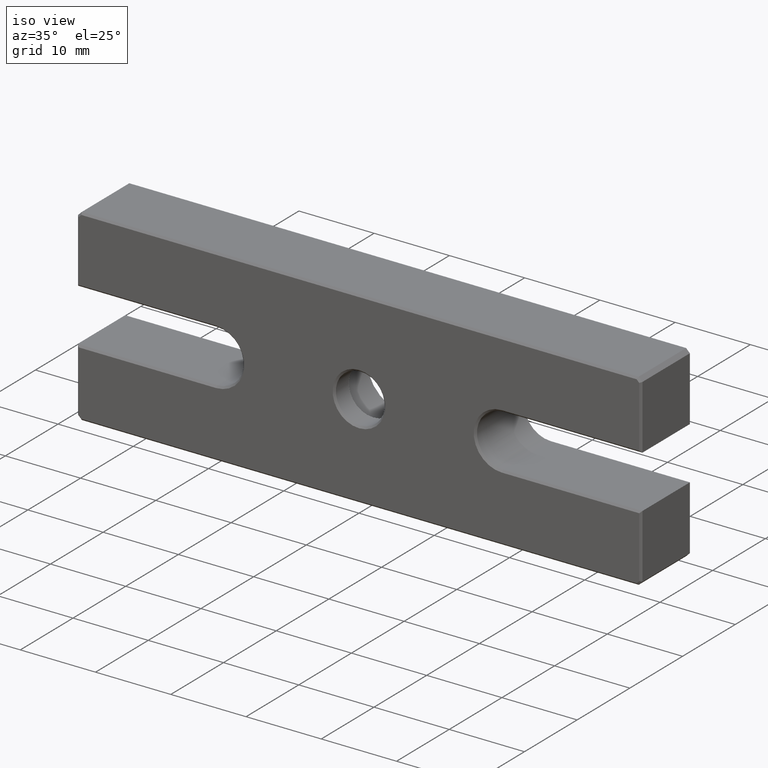
[diagram: clean part render]
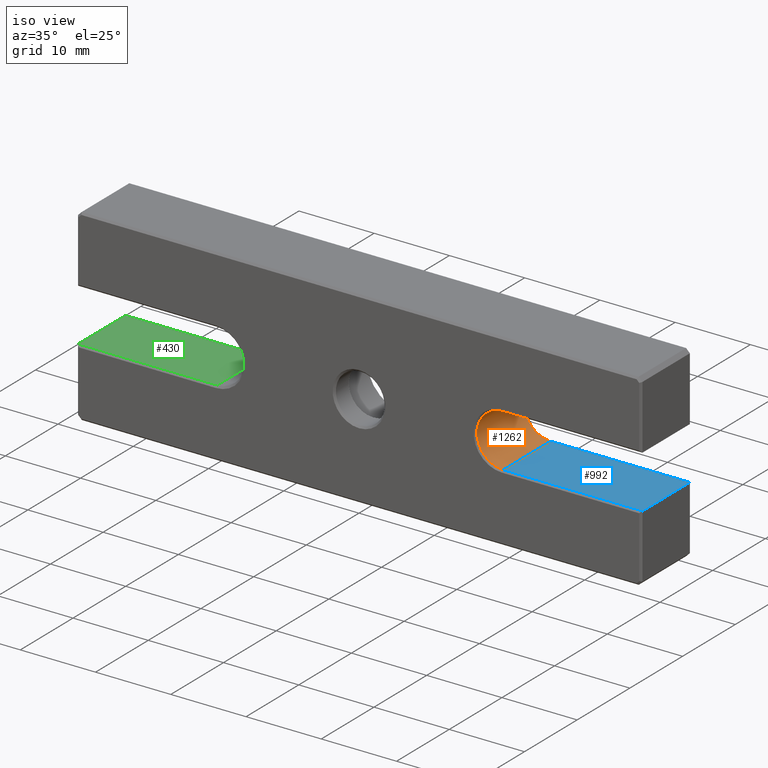
[diagram: same view with three faces highlighted in distinct colors, each labeled with its STEP entity id]
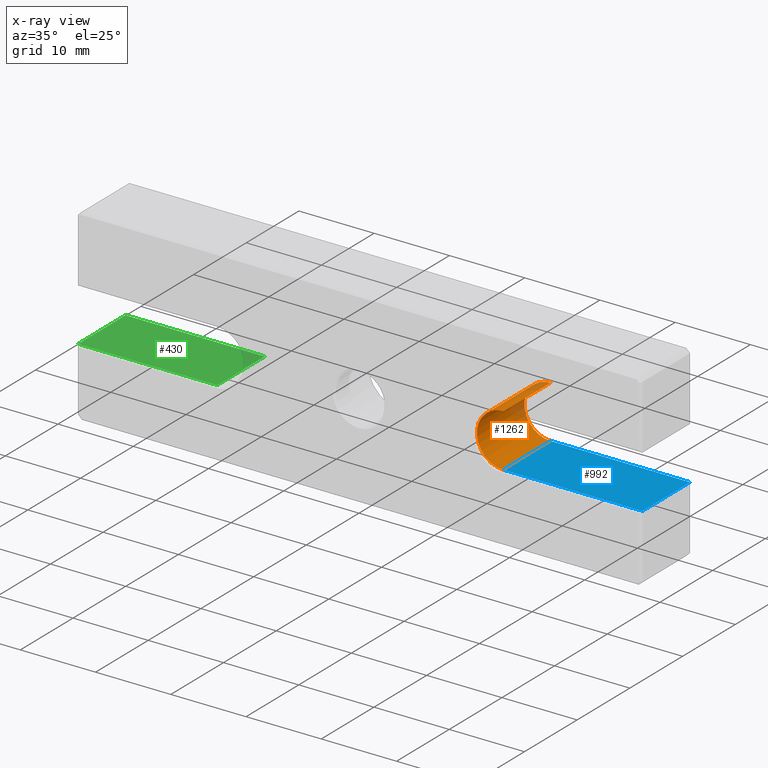
[diagram: x-ray of the same camera — body ghosted, the three highlighted faces saturated]
A machine part, iso view with three faces highlighted in distinct colors.
The next image is the same camera in x-ray (body ghosted, the three faces saturated) — at least one of them is partly hidden behind the body in this view.
Their STEP definitions:

[orange] entity #1262 — the highlighted cylindrical surface (edge-blend (fillet) strip) has radius 3.5 mm, axis along (-0, 1, -0).
#68 = DIRECTION ( 'NONE',  ( -0.000000000000000000, -1.000000000000000000, -0.000000000000000000 ) ) ;
#83 = CIRCLE ( 'NONE', #1142, 3.500000000000000000 ) ;
#129 = DIRECTION ( 'NONE',  ( 0.000000000000000000, 0.000000000000000000, 1.000000000000000000 ) ) ;
#151 = CARTESIAN_POINT ( 'NONE',  ( 19.00000000000000355, 0.000000000000000000, 3.499999999999999556 ) ) ;
#185 = CIRCLE ( 'NONE', #1169, 3.500000000000000000 ) ;
#210 = FACE_OUTER_BOUND ( 'NONE', #1205, .T. ) ;
#218 = VERTEX_POINT ( 'NONE', #1105 ) ;
#231 = CARTESIAN_POINT ( 'NONE',  ( 19.00000000000000355, 9.250000000000000000, -3.500000000000000444 ) ) ;
#401 = ORIENTED_EDGE ( 'NONE', *, *, #1498, .T. ) ;
#425 = ORIENTED_EDGE ( 'NONE', *, *, #1001, .F. ) ;
#612 = CARTESIAN_POINT ( 'NONE',  ( 19.00000000000000355, 0.000000000000000000, -4.336808689942017736E-16 ) ) ;
#682 = EDGE_CURVE ( 'NONE', #1336, #1339, #83, .T. ) ;
#711 = VERTEX_POINT ( 'NONE', #1366 ) ;
#724 = CARTESIAN_POINT ( 'NONE',  ( 19.00000000000000355, 0.000000000000000000, -3.500000000000000444 ) ) ;
#731 = DIRECTION ( 'NONE',  ( -0.000000000000000000, 1.000000000000000000, -0.000000000000000000 ) ) ;
#830 = CARTESIAN_POINT ( 'NONE',  ( 19.00000000000000355, 9.250000000000000000, 3.499999999999999556 ) ) ;
#872 = DIRECTION ( 'NONE',  ( 0.000000000000000000, 0.000000000000000000, 1.000000000000000000 ) ) ;
#981 = DIRECTION ( 'NONE',  ( -0.000000000000000000, 1.000000000000000000, -0.000000000000000000 ) ) ;
#989 = CARTESIAN_POINT ( 'NONE',  ( 19.00000000000000355, 9.250000000000000000, -4.336808689942017736E-16 ) ) ;
#1001 = EDGE_CURVE ( 'NONE', #218, #1339, #1447, .T. ) ;
#1074 = AXIS2_PLACEMENT_3D ( 'NONE', #612, #731, #129 ) ;
#1099 = ORIENTED_EDGE ( 'NONE', *, *, #1380, .T. ) ;
#1105 = CARTESIAN_POINT ( 'NONE',  ( 19.00000000000000355, 0.2500000000000002220, 3.499999999999999556 ) ) ;
#1123 = CARTESIAN_POINT ( 'NONE',  ( 19.00000000000000355, 0.2500000000000002220, -4.336808689942017736E-16 ) ) ;
#1131 = CYLINDRICAL_SURFACE ( 'NONE', #1074, 3.500000000000000000 ) ;
#1142 = AXIS2_PLACEMENT_3D ( 'NONE', #989, #1458, #872 ) ;
#1169 = AXIS2_PLACEMENT_3D ( 'NONE', #1123, #68, #1436 ) ;
#1189 = ORIENTED_EDGE ( 'NONE', *, *, #682, .T. ) ;
#1192 = DIRECTION ( 'NONE',  ( -0.000000000000000000, 1.000000000000000000, -0.000000000000000000 ) ) ;
#1205 = EDGE_LOOP ( 'NONE', ( #425, #401, #1099, #1189 ) ) ;
#1243 = VECTOR ( 'NONE', #1192, 1000.000000000000000 ) ;
#1262 = ADVANCED_FACE ( 'NONE', ( #210 ), #1131, .F. ) ;
#1336 = VERTEX_POINT ( 'NONE', #231 ) ;
#1339 = VERTEX_POINT ( 'NONE', #830 ) ;
#1366 = CARTESIAN_POINT ( 'NONE',  ( 19.00000000000000355, 0.2500000000000002776, -3.500000000000000444 ) ) ;
#1380 = EDGE_CURVE ( 'NONE', #711, #1336, #1421, .T. ) ;
#1421 = LINE ( 'NONE', #724, #1243 ) ;
#1436 = DIRECTION ( 'NONE',  ( 0.000000000000000000, 0.000000000000000000, 1.000000000000000000 ) ) ;
#1447 = LINE ( 'NONE', #151, #1464 ) ;
#1458 = DIRECTION ( 'NONE',  ( 0.000000000000000000, 1.000000000000000000, 0.000000000000000000 ) ) ;
#1464 = VECTOR ( 'NONE', #981, 1000.000000000000000 ) ;
#1498 = EDGE_CURVE ( 'NONE', #218, #711, #185, .T. ) ;

[blue] entity #992 — the highlighted planar face has unit normal (0, 0, -1).
#4 = LINE ( 'NONE', #476, #1310 ) ;
#32 = LINE ( 'NONE', #1331, #357 ) ;
#37 = DIRECTION ( 'NONE',  ( -1.000000000000000000, 0.000000000000000000, -1.469598057557810142E-17 ) ) ;
#125 = EDGE_CURVE ( 'NONE', #366, #1336, #4, .T. ) ;
#192 = VERTEX_POINT ( 'NONE', #528 ) ;
#231 = CARTESIAN_POINT ( 'NONE',  ( 19.00000000000000355, 9.250000000000000000, -3.500000000000000444 ) ) ;
#284 = PLANE ( 'NONE',  #823 ) ;
#357 = VECTOR ( 'NONE', #506, 1000.000000000000000 ) ;
#366 = VERTEX_POINT ( 'NONE', #1012 ) ;
#429 = VECTOR ( 'NONE', #474, 1000.000000000000000 ) ;
#474 = DIRECTION ( 'NONE',  ( 1.000000000000000000, 0.000000000000000000, 1.469598057557810142E-17 ) ) ;
#476 = CARTESIAN_POINT ( 'NONE',  ( 19.00000000000000355, 9.250000000000000000, -3.500000000000000444 ) ) ;
#496 = EDGE_CURVE ( 'NONE', #711, #192, #1066, .T. ) ;
#506 = DIRECTION ( 'NONE',  ( 0.000000000000000000, -1.000000000000000000, 0.000000000000000000 ) ) ;
#528 = CARTESIAN_POINT ( 'NONE',  ( 37.50000000000000000, 0.2500000000000071609, -3.500000000000001332 ) ) ;
#600 = ORIENTED_EDGE ( 'NONE', *, *, #496, .T. ) ;
#608 = ORIENTED_EDGE ( 'NONE', *, *, #125, .T. ) ;
#621 = CARTESIAN_POINT ( 'NONE',  ( 19.00000000000000355, 0.000000000000000000, -3.500000000000000444 ) ) ;
#670 = EDGE_CURVE ( 'NONE', #366, #192, #32, .T. ) ;
#711 = VERTEX_POINT ( 'NONE', #1366 ) ;
#724 = CARTESIAN_POINT ( 'NONE',  ( 19.00000000000000355, 0.000000000000000000, -3.500000000000000444 ) ) ;
#745 = FACE_OUTER_BOUND ( 'NONE', #1346, .T. ) ;
#823 = AXIS2_PLACEMENT_3D ( 'NONE', #621, #1092, #37 ) ;
#945 = DIRECTION ( 'NONE',  ( -1.000000000000000000, -0.000000000000000000, -1.469598057557810142E-17 ) ) ;
#959 = ORIENTED_EDGE ( 'NONE', *, *, #670, .F. ) ;
#992 = ADVANCED_FACE ( 'NONE', ( #745 ), #284, .F. ) ;
#1012 = CARTESIAN_POINT ( 'NONE',  ( 37.49999999999999289, 9.250000000000000000, -3.500000000000000000 ) ) ;
#1066 = LINE ( 'NONE', #1289, #429 ) ;
#1092 = DIRECTION ( 'NONE',  ( 1.469598057557810142E-17, 0.000000000000000000, -1.000000000000000000 ) ) ;
#1192 = DIRECTION ( 'NONE',  ( -0.000000000000000000, 1.000000000000000000, -0.000000000000000000 ) ) ;
#1243 = VECTOR ( 'NONE', #1192, 1000.000000000000000 ) ;
#1289 = CARTESIAN_POINT ( 'NONE',  ( 19.00000000000000355, 0.2500000000000002776, -3.500000000000000444 ) ) ;
#1310 = VECTOR ( 'NONE', #945, 1000.000000000000000 ) ;
#1331 = CARTESIAN_POINT ( 'NONE',  ( 37.50000000000000000, 9.500000000000000000, -3.500000000000001332 ) ) ;
#1336 = VERTEX_POINT ( 'NONE', #231 ) ;
#1346 = EDGE_LOOP ( 'NONE', ( #1400, #600, #959, #608 ) ) ;
#1366 = CARTESIAN_POINT ( 'NONE',  ( 19.00000000000000355, 0.2500000000000002776, -3.500000000000000444 ) ) ;
#1380 = EDGE_CURVE ( 'NONE', #711, #1336, #1421, .T. ) ;
#1400 = ORIENTED_EDGE ( 'NONE', *, *, #1380, .F. ) ;
#1421 = LINE ( 'NONE', #724, #1243 ) ;

[green] entity #430 — the highlighted planar face has unit normal (-0, 0, -1).
#7 = VECTOR ( 'NONE', #353, 1000.000000000000000 ) ;
#19 = FACE_OUTER_BOUND ( 'NONE', #895, .T. ) ;
#28 = ORIENTED_EDGE ( 'NONE', *, *, #480, .F. ) ;
#33 = LINE ( 'NONE', #507, #1287 ) ;
#174 = CARTESIAN_POINT ( 'NONE',  ( -19.00000000000000355, 9.250000000000014211, -3.500000000000000000 ) ) ;
#202 = VERTEX_POINT ( 'NONE', #1081 ) ;
#205 = EDGE_CURVE ( 'NONE', #1193, #264, #33, .T. ) ;
#220 = DIRECTION ( 'NONE',  ( -1.000000000000000000, 0.000000000000000000, 1.235698774602665477E-17 ) ) ;
#264 = VERTEX_POINT ( 'NONE', #174 ) ;
#341 = ORIENTED_EDGE ( 'NONE', *, *, #841, .T. ) ;
#344 = CARTESIAN_POINT ( 'NONE',  ( -19.00000000000000355, 0.2499999999999880651, -3.500000000000000000 ) ) ;
#353 = DIRECTION ( 'NONE',  ( 0.000000000000000000, 1.000000000000000000, 0.000000000000000000 ) ) ;
#380 = AXIS2_PLACEMENT_3D ( 'NONE', #467, #804, #220 ) ;
#408 = ORIENTED_EDGE ( 'NONE', *, *, #205, .T. ) ;
#420 = ORIENTED_EDGE ( 'NONE', *, *, #902, .T. ) ;
#430 = ADVANCED_FACE ( 'NONE', ( #19 ), #1045, .F. ) ;
#467 = CARTESIAN_POINT ( 'NONE',  ( -19.00000000000000355, 0.000000000000000000, -3.500000000000000000 ) ) ;
#473 = DIRECTION ( 'NONE',  ( 1.000000000000000000, 0.000000000000000000, -1.235698774602665477E-17 ) ) ;
#480 = EDGE_CURVE ( 'NONE', #1231, #202, #1402, .T. ) ;
#507 = CARTESIAN_POINT ( 'NONE',  ( -19.00000000000000355, 0.000000000000000000, -3.500000000000000000 ) ) ;
#582 = LINE ( 'NONE', #1280, #1072 ) ;
#687 = CARTESIAN_POINT ( 'NONE',  ( -19.00000000000000355, 0.2499999999999880651, -3.500000000000000000 ) ) ;
#693 = CARTESIAN_POINT ( 'NONE',  ( -37.50000000000000000, 0.2500000000000071609, -3.499999999999999556 ) ) ;
#720 = CARTESIAN_POINT ( 'NONE',  ( -37.50000000000000000, 9.500000000000000000, -3.499999999999999556 ) ) ;
#780 = VECTOR ( 'NONE', #473, 1000.000000000000000 ) ;
#804 = DIRECTION ( 'NONE',  ( -1.235698774602665477E-17, 0.000000000000000000, -1.000000000000000000 ) ) ;
#808 = DIRECTION ( 'NONE',  ( -1.000000000000000000, 0.000000000000000000, 1.235698774602665477E-17 ) ) ;
#841 = EDGE_CURVE ( 'NONE', #1231, #1193, #1183, .T. ) ;
#895 = EDGE_LOOP ( 'NONE', ( #28, #341, #408, #420 ) ) ;
#902 = EDGE_CURVE ( 'NONE', #264, #202, #582, .T. ) ;
#998 = DIRECTION ( 'NONE',  ( -0.000000000000000000, 1.000000000000000000, -0.000000000000000000 ) ) ;
#1045 = PLANE ( 'NONE',  #380 ) ;
#1072 = VECTOR ( 'NONE', #808, 1000.000000000000000 ) ;
#1081 = CARTESIAN_POINT ( 'NONE',  ( -37.49999999999999289, 9.250000000000000000, -3.499999999999999556 ) ) ;
#1183 = LINE ( 'NONE', #344, #780 ) ;
#1193 = VERTEX_POINT ( 'NONE', #687 ) ;
#1231 = VERTEX_POINT ( 'NONE', #693 ) ;
#1280 = CARTESIAN_POINT ( 'NONE',  ( -37.24999999999999289, 9.250000000000014211, -3.499999999999999556 ) ) ;
#1287 = VECTOR ( 'NONE', #998, 1000.000000000000000 ) ;
#1402 = LINE ( 'NONE', #720, #7 ) ;